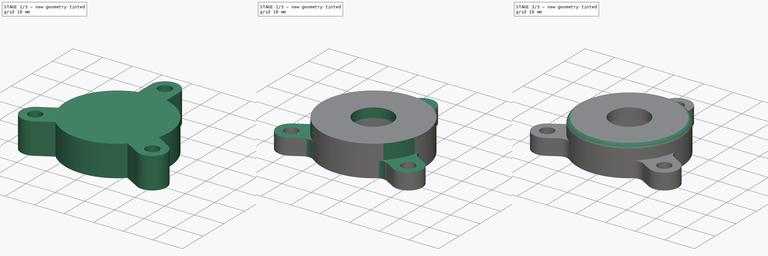
[diagram: build sequence overview — one tinted view per stage of 3, left to right]
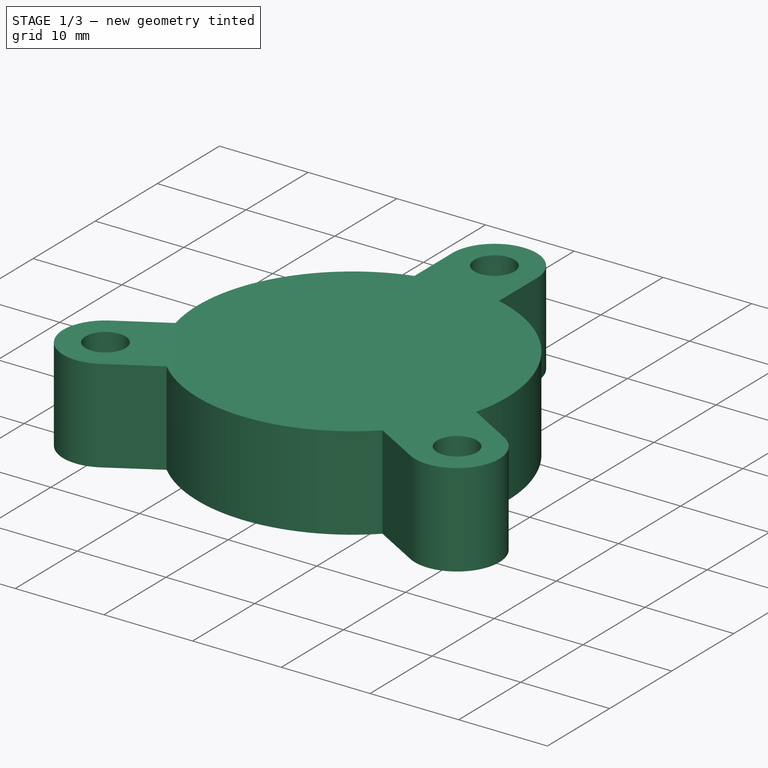
[diagram: stage 1 of 3 — iso view after this stage's code; geometry added in this stage tinted green]
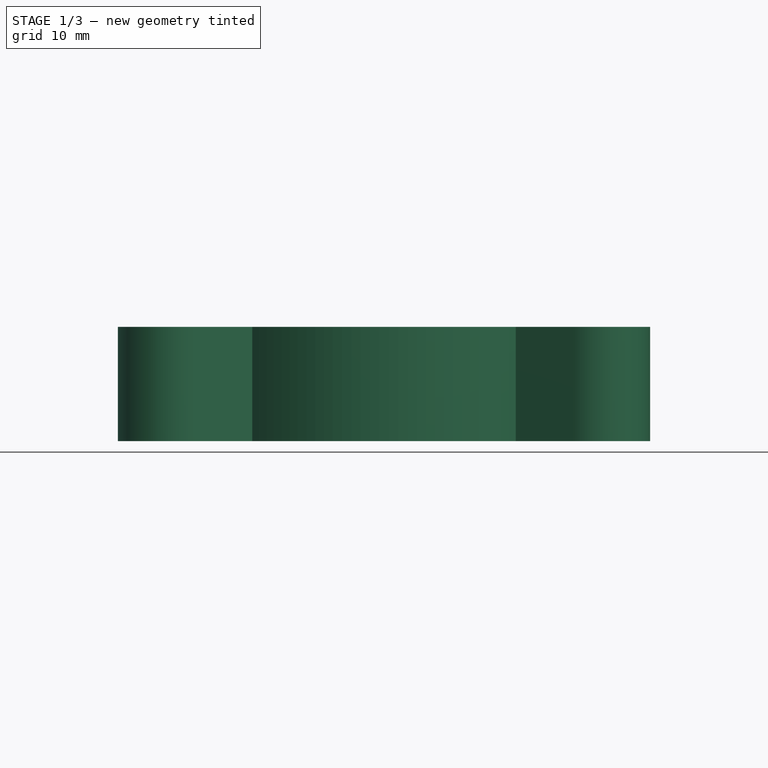
[diagram: stage 1 of 3 — front view after this stage's code; geometry added in this stage tinted green]
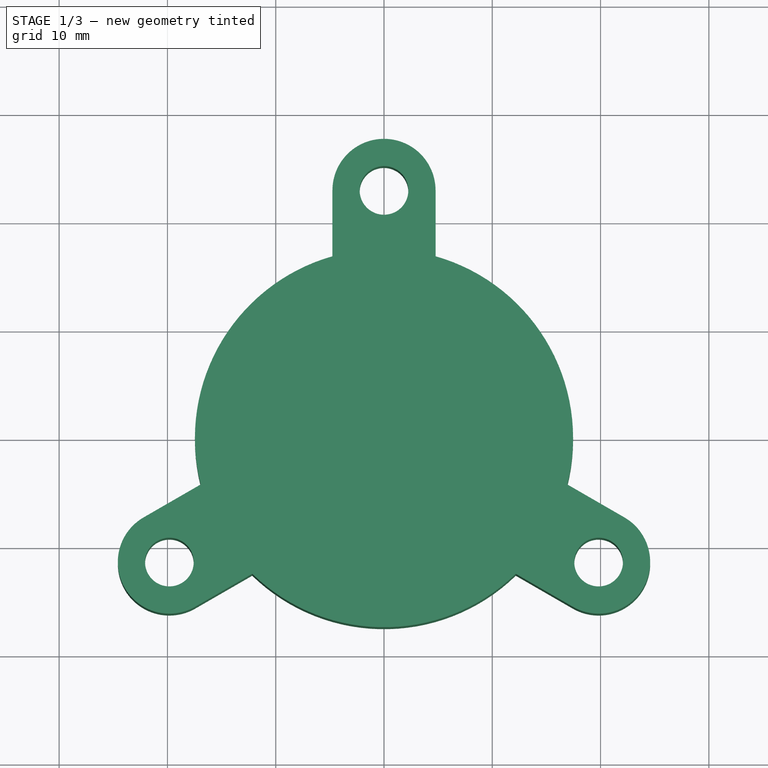
[diagram: stage 1 of 3 — top view after this stage's code; geometry added in this stage tinted green]
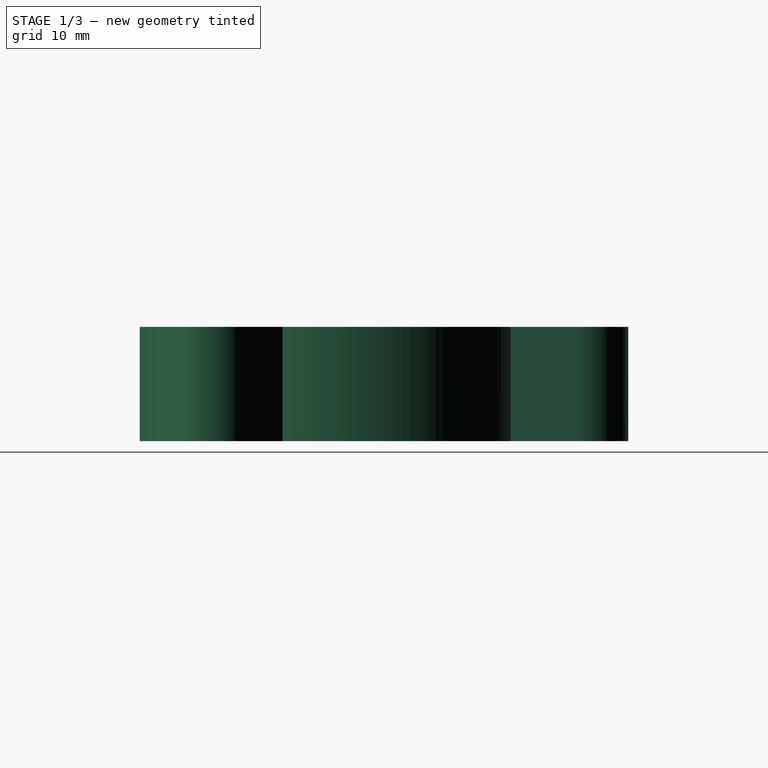
[diagram: stage 1 of 3 — right view after this stage's code; geometry added in this stage tinted green]
FCSTD DOCUMENT  (FreeCAD 0.17R13522 (Git))
Label: weapon_bearing_block
License: All rights reserved
LicenseURL: http://en.wikipedia.org/wiki/All_rights_reserved
objects: Sketcher::SketchObject×4, PartDesign::Pocket×3, PartDesign::Fillet×2, PartDesign::Pad×1, PartDesign::Chamfer×1, PartDesign::Body×1
note: 16 computed .brp shape members not serialized (recipe doc carries the construction recipe); baked Part::Feature solids carry a one-line shape summary decoded from their .brp

FEATURE [Sketcher::SketchObject] Sketch
  MapMode = 5
  Support = -> [XY_Plane]
  sketch-geometry (24):
    g0: ArcOfCircle CenterX=0 CenterY=0 CenterZ=0 NormalX=0 NormalY=0 NormalZ=1 AngleXU=0 Radius=17.4625 StartAngle=6.03581 EndAngle=7.57776
    g1: LineSegment [constr] StartX=0 StartY=0 StartZ=0 EndX=19.8193 EndY=-11.4427 EndZ=0
    g2: LineSegment [constr] StartX=0 StartY=0 StartZ=0 EndX=-19.8193 EndY=-11.4427 EndZ=0
    g3: LineSegment [constr] StartX=0 StartY=0 StartZ=0 EndX=0 EndY=22.8854 EndZ=0
    g4: Circle CenterX=19.8193 CenterY=-11.4427 CenterZ=0 NormalX=0 NormalY=0 NormalZ=1 AngleXU=0 Radius=2.2479
    g5: Circle CenterX=-19.8193 CenterY=-11.4427 CenterZ=0 NormalX=0 NormalY=0 NormalZ=1 AngleXU=0 Radius=2.2479
    g6: Circle CenterX=0 CenterY=22.8854 CenterZ=0 NormalX=0 NormalY=0 NormalZ=1 AngleXU=0 Radius=2.2479
    g7: LineSegment StartX=-4.7625 StartY=22.8854 StartZ=0 EndX=-4.7625 EndY=16.8005 EndZ=0
    g8: LineSegment StartX=4.7625 StartY=22.8854 StartZ=0 EndX=4.7625 EndY=16.8005 EndZ=0
    g9: LineSegment StartX=-22.2006 StartY=-7.31825 StartZ=0 EndX=-16.9309 EndY=-4.27581 EndZ=0
    g10: LineSegment StartX=-17.4381 StartY=-15.5671 StartZ=0 EndX=-12.1684 EndY=-12.5247 EndZ=0
    g11: LineSegment [constr] StartX=17.4381 StartY=-15.5671 StartZ=0 EndX=19.8193 EndY=-11.4427 EndZ=0
    g12: LineSegment [constr] StartX=-19.8193 StartY=-11.4427 StartZ=0 EndX=-17.4381 EndY=-15.5671 EndZ=0
    g13: LineSegment [constr] StartX=0 StartY=22.8854 StartZ=0 EndX=4.7625 EndY=22.8854 EndZ=0
    g14: LineSegment [constr] StartX=19.8193 StartY=-11.4427 StartZ=0 EndX=22.2006 EndY=-7.31825 EndZ=0
    g15: LineSegment StartX=16.9309 StartY=-4.27581 StartZ=0 EndX=22.2006 EndY=-7.31825 EndZ=0
    g16: LineSegment StartX=12.1684 StartY=-12.5247 StartZ=0 EndX=17.4381 EndY=-15.5671 EndZ=0
    g17: LineSegment [constr] StartX=-22.2006 StartY=-7.31825 StartZ=0 EndX=-19.8193 EndY=-11.4427 EndZ=0
    g18: LineSegment [constr] StartX=-4.7625 StartY=22.8854 StartZ=0 EndX=0 EndY=22.8854 EndZ=0
    g19: ArcOfCircle CenterX=0 CenterY=0 CenterZ=0 NormalX=0 NormalY=0 NormalZ=1 AngleXU=0 Radius=17.4625 StartAngle=1.84702 EndAngle=3.38896
    g20: ArcOfCircle CenterX=0 CenterY=0 CenterZ=0 NormalX=0 NormalY=0 NormalZ=1 AngleXU=0 Radius=17.4625 StartAngle=3.94142 EndAngle=5.48336
    g21: ArcOfCircle CenterX=0 CenterY=22.8854 CenterZ=0 NormalX=0 NormalY=0 NormalZ=1 AngleXU=0 Radius=4.7625 StartAngle=0 EndAngle=3.14159
    g22: ArcOfCircle CenterX=19.8193 CenterY=-11.4427 CenterZ=0 NormalX=0 NormalY=0 NormalZ=1 AngleXU=0 Radius=4.7625 StartAngle=4.18879 EndAngle=7.33038
    g23: ArcOfCircle CenterX=-19.8193 CenterY=-11.4427 CenterZ=0 NormalX=0 NormalY=0 NormalZ=1 AngleXU=0 Radius=4.7625 StartAngle=2.0944 EndAngle=5.23599
  constraints (67):
    c: Coincident(g0,g-1)
    c: Radius(g0) = 17.4625
    c: Coincident(g1,g-1)
    c: Coincident(g2,g-1)
    c: Angle(g1,g-2) = 2.0944
    c: Angle(g-2,g2) = 2.0944
    c: Distance(g1) = 22.8854
    c: Distance(g2) = 22.8854
    c: Coincident(g3,g-1)
    c: DistanceY(g3,g3) = 22.8854
    c: Coincident(g4,g1)
    c: Coincident(g5,g2)
    c: Coincident(g6,g3)
    c: Radius(g6) = 2.2479
    c: Equal(g6,g4)
    c: Equal(g6,g5)
    c: Vertical(g7)
    c: Vertical(g8)
    c: Parallel(g10,g9)
    c: Parallel(g9,g2)
    c: Parallel(g7,g3)
    c: Coincident(g11,g16)
    c: Coincident(g11,g1)
    c: Coincident(g14,g1)
    c: Coincident(g14,g15)
    c: Perpendicular(g1,g14)
    c: Distance(g16,g15) = 9.525
    c: Symmetric(g16,g15,g1)
    c: Coincident(g0,g15)
    c: Coincident(g20,g16)
    c: Perpendicular(g10,g12)
    c: Coincident(g12,g10)
    c: Coincident(g12,g2)
    c: Coincident(g17,g9)
    c: Coincident(g17,g2)
    c: Perpendicular(g9,g17)
    c: Symmetric(g10,g9,g2)
    c: Distance(g10,g9) = 9.525
    c: PointOnObject(g10,g0)
    c: PointOnObject(g9,g0)
    c: Perpendicular(g13,g8)
    c: Coincident(g8,g13)
    c: Coincident(g13,g3)
    c: Horizontal(g18)
    c: Coincident(g18,g3)
    c: Coincident(g18,g7)
    c: Symmetric(g7,g8,g3)
    c: DistanceX(g7,g8) = 9.525
    c: Equal(g0,g19)
    c: Coincident(g19,g7)
    c: Coincident(g0,g19)
    c: Coincident(g0,g8)
    c: Equal(g19,g20)
    c: PointOnObject(g20,g10)
    c: Coincident(g19,g20)
    c: PointOnObject(g19,g9)
    c: Coincident(g21,g3)
    c: Coincident(g21,g7)
    c: Coincident(g21,g8)
    c: Coincident(g22,g1)
    c: Coincident(g22,g14)
    c: Coincident(g22,g11)
    c: Coincident(g23,g2)
    c: Coincident(g23,g9)
    c: Coincident(g23,g10)
    c: Parallel(g15,g16)
    c: Parallel(g15,g1)
FEATURE [PartDesign::Pad] Pad
  Length = 10.541
  Length2 = 99.9998
  Profile = -> Sketch
  Type = 0
FEATURE [Sketcher::SketchObject] Sketch001
  MapMode = 5
  Placement = pos=(0,0,0) rot=(1,0,0;3.14159rad)
  Support = -> [Pad]
  sketch-geometry (1):
    g0: Circle CenterX=0 CenterY=0 CenterZ=0 NormalX=0 NormalY=0 NormalZ=1 AngleXU=0 Radius=11.176
  constraints (2):
    c: Coincident(g0,g-1)
    c: Radius(g0) = 11.176
FEATURE [PartDesign::Pocket] Pocket
  BaseFeature = -> Pad
  Length = 7.366
  Length2 = 99.9998
  Profile = -> Sketch001
  Type = 0
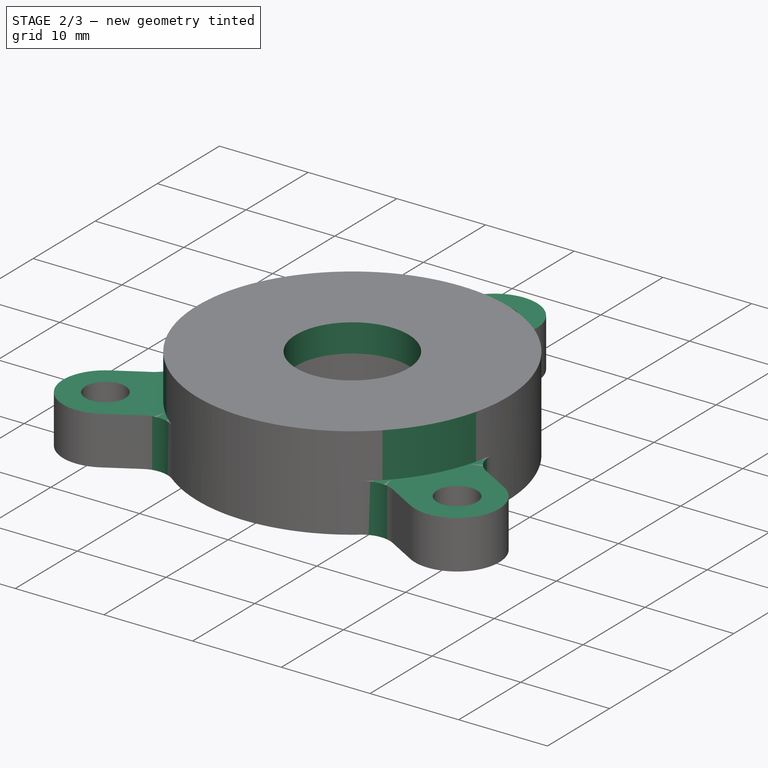
[diagram: stage 2 of 3 — iso view after this stage's code; geometry added in this stage tinted green]
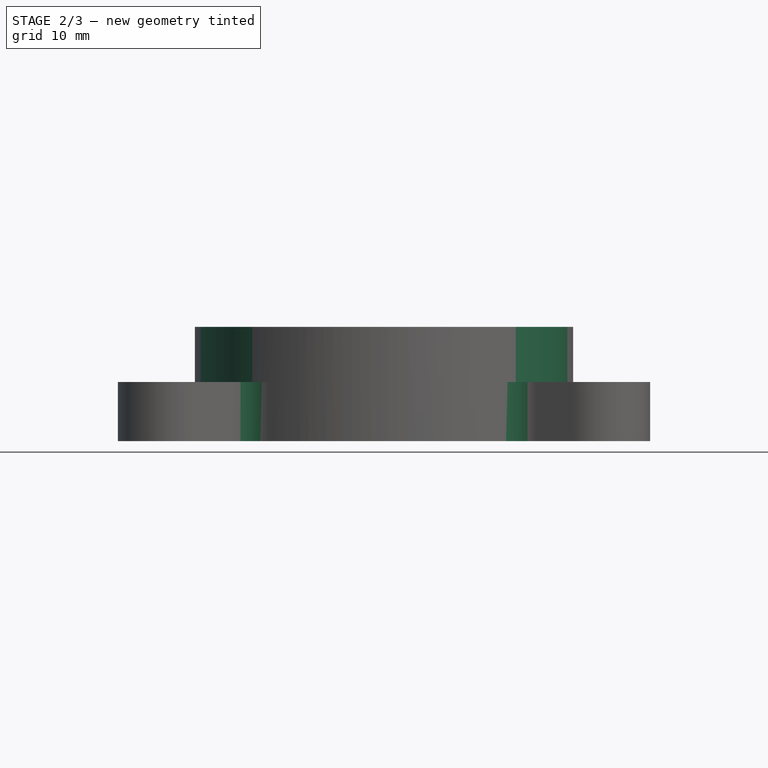
[diagram: stage 2 of 3 — front view after this stage's code; geometry added in this stage tinted green]
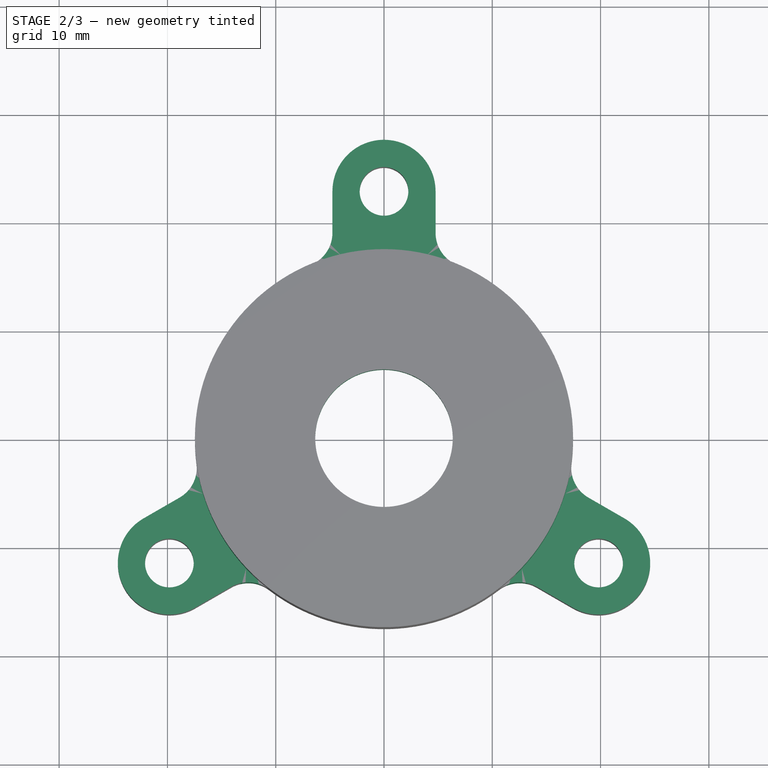
[diagram: stage 2 of 3 — top view after this stage's code; geometry added in this stage tinted green]
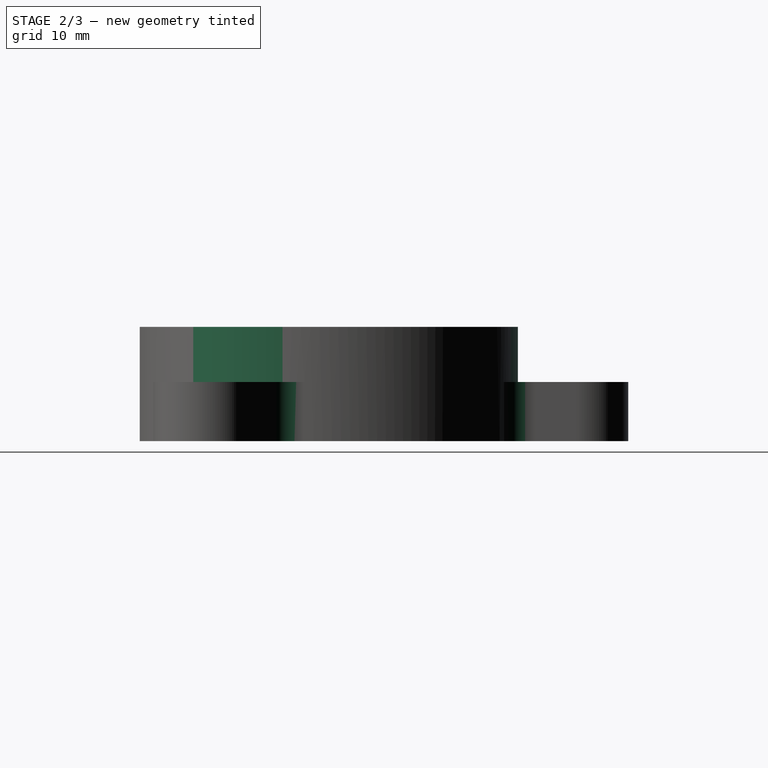
[diagram: stage 2 of 3 — right view after this stage's code; geometry added in this stage tinted green]
FEATURE [Sketcher::SketchObject] Sketch002
  MapMode = 5
  Placement = pos=(0,0,7.366) rot=(1,0,0;3.14159rad)
  Support = -> [Pocket]
  sketch-geometry (1):
    g0: Circle CenterX=0 CenterY=0 CenterZ=0 NormalX=0 NormalY=0 NormalZ=1 AngleXU=0 Radius=6.35
  constraints (2):
    c: Coincident(g0,g-1)
    c: Radius(g0) = 6.35
FEATURE [PartDesign::Pocket] Pocket001
  BaseFeature = -> Pocket
  Length = 5.0038
  Length2 = 99.9998
  Profile = -> Sketch002
  Type = 1
FEATURE [Sketcher::SketchObject] Sketch003
  ExternalGeometry = -> [Pocket001]
  MapMode = 5
  Placement = pos=(0,0,10.541) rot=(0,0,1;0rad)
  Support = -> [Pocket001]
  sketch-geometry (12):
    g0: ArcOfCircle CenterX=0 CenterY=0 CenterZ=0 NormalX=0 NormalY=0 NormalZ=1 AngleXU=0 Radius=17.4625 StartAngle=5.48336 EndAngle=6.03581
    g1: ArcOfCircle CenterX=0 CenterY=0 CenterZ=0 NormalX=0 NormalY=0 NormalZ=1 AngleXU=0 Radius=17.4625 StartAngle=3.38896 EndAngle=3.94142
    g2: LineSegment StartX=16.9309 StartY=-4.27581 StartZ=0 EndX=22.2006 EndY=-7.31825 EndZ=0
    g3: LineSegment StartX=12.1684 StartY=-12.5247 StartZ=0 EndX=17.4381 EndY=-15.5671 EndZ=0
    g4: LineSegment StartX=-12.1684 StartY=-12.5247 StartZ=0 EndX=-17.4381 EndY=-15.5671 EndZ=0
    g5: LineSegment StartX=-16.9309 StartY=-4.27581 StartZ=0 EndX=-22.2006 EndY=-7.31825 EndZ=0
    g6: ArcOfCircle CenterX=19.8193 CenterY=-11.4427 CenterZ=0 NormalX=0 NormalY=0 NormalZ=1 AngleXU=0 Radius=4.7625 StartAngle=4.18879 EndAngle=7.33038
    g7: ArcOfCircle CenterX=-19.8193 CenterY=-11.4427 CenterZ=0 NormalX=0 NormalY=0 NormalZ=1 AngleXU=0 Radius=4.7625 StartAngle=2.0944 EndAngle=5.23599
    g8: ArcOfCircle CenterX=0 CenterY=0 CenterZ=0 NormalX=0 NormalY=0 NormalZ=1 AngleXU=0 Radius=17.4625 StartAngle=1.29457 EndAngle=1.84702
    g9: LineSegment StartX=-4.7625 StartY=22.8854 StartZ=0 EndX=-4.7625 EndY=16.8005 EndZ=0
    g10: LineSegment StartX=4.7625 StartY=22.8854 StartZ=0 EndX=4.7625 EndY=16.8005 EndZ=0
    g11: ArcOfCircle CenterX=0 CenterY=22.8854 CenterZ=0 NormalX=0 NormalY=0 NormalZ=1 AngleXU=0 Radius=4.7625 StartAngle=0 EndAngle=3.14159
  constraints (30):
    c: Coincident(g0,g-1)
    c: Coincident(g0,g-3)
    c: Coincident(g0,g-4)
    c: Coincident(g1,g-1)
    c: Coincident(g1,g-7)
    c: Coincident(g1,g-6)
    c: Coincident(g2,g0)
    c: Coincident(g2,g-5)
    c: Coincident(g3,g0)
    c: Coincident(g3,g-5)
    c: Coincident(g4,g1)
    c: Coincident(g4,g-8)
    c: Coincident(g5,g1)
    c: Coincident(g5,g-8)
    c: Coincident(g6,g-5)
    c: Coincident(g6,g2)
    c: Coincident(g6,g3)
    c: Coincident(g7,g-8)
    c: Coincident(g7,g5)
    c: Coincident(g7,g4)
    c: Coincident(g8,g-1)
    c: Coincident(g8,g-9)
    c: Coincident(g8,g-10)
    c: Coincident(g9,g-11)
    c: Coincident(g9,g8)
    c: Coincident(g10,g-11)
    c: Coincident(g10,g8)
    c: Coincident(g11,g-11)
    c: Coincident(g11,g9)
    c: Coincident(g11,g10)
FEATURE [PartDesign::Pocket] Pocket002
  BaseFeature = -> Pocket001
  Length = 5.08
  Length2 = 99.9998
  Profile = -> Sketch003
  Type = 0
FEATURE [PartDesign::Fillet] Fillet
  Base = -> Pocket002 [Edge45,Edge42,Edge31,Edge20,Edge25,Edge26]
  BaseFeature = -> Pocket002
  Radius = 3.175
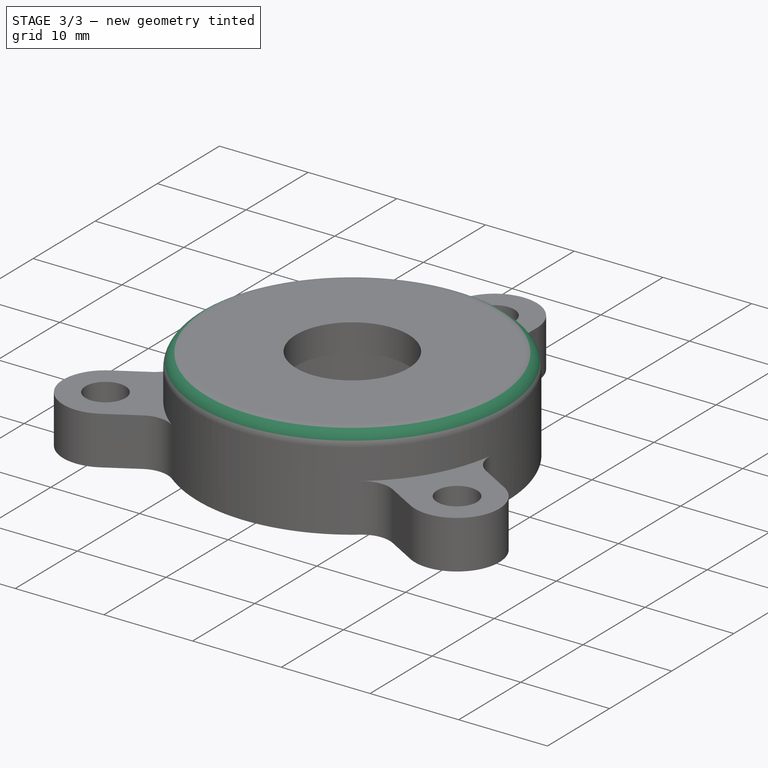
[diagram: stage 3 of 3 — iso view after this stage's code; geometry added in this stage tinted green]
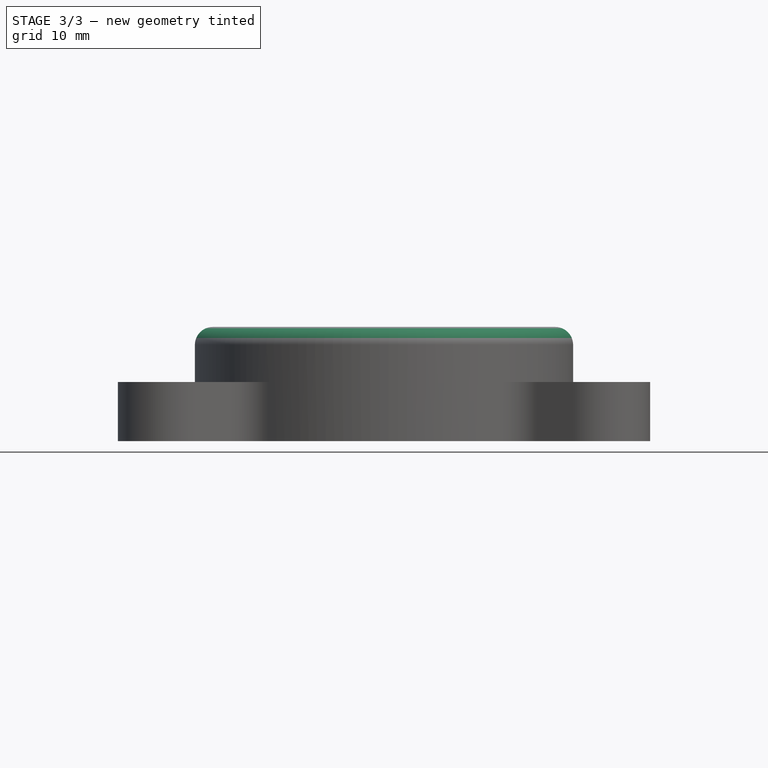
[diagram: stage 3 of 3 — front view after this stage's code; geometry added in this stage tinted green]
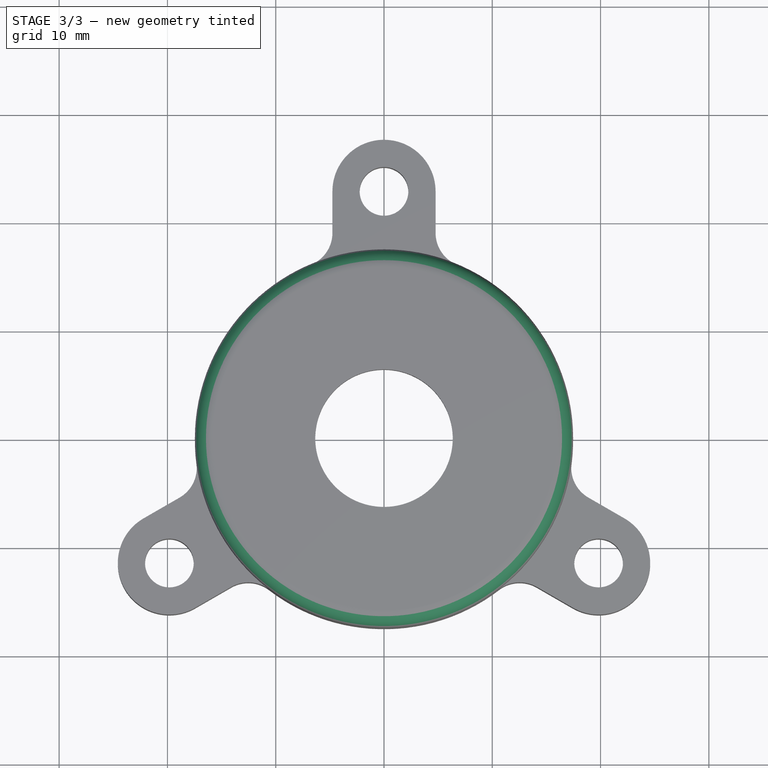
[diagram: stage 3 of 3 — top view after this stage's code; geometry added in this stage tinted green]
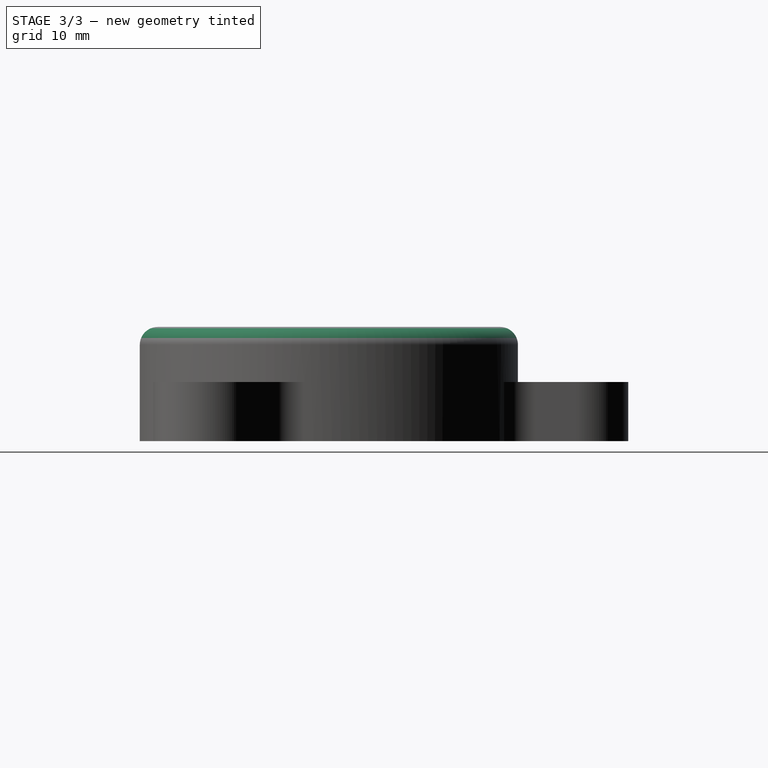
[diagram: stage 3 of 3 — right view after this stage's code; geometry added in this stage tinted green]
FEATURE [PartDesign::Fillet] Fillet001
  Base = -> Fillet [Edge83,Edge49,Edge82,Edge35,Edge81,Edge67]
  BaseFeature = -> Fillet
  Radius = 1.651
FEATURE [PartDesign::Chamfer] Chamfer
  Base = -> Fillet001 [Edge51]
  BaseFeature = -> Fillet001
  Size = 1.27
FEATURE [PartDesign::Body] Body
  Group = -> [Sketch,Pad,Sketch001,Pocket,Sketch002,Pocket001,Sketch003,Pocket002,Fillet,Fillet001,Chamfer]
  Origin = -> Origin
  Tip = -> Chamfer
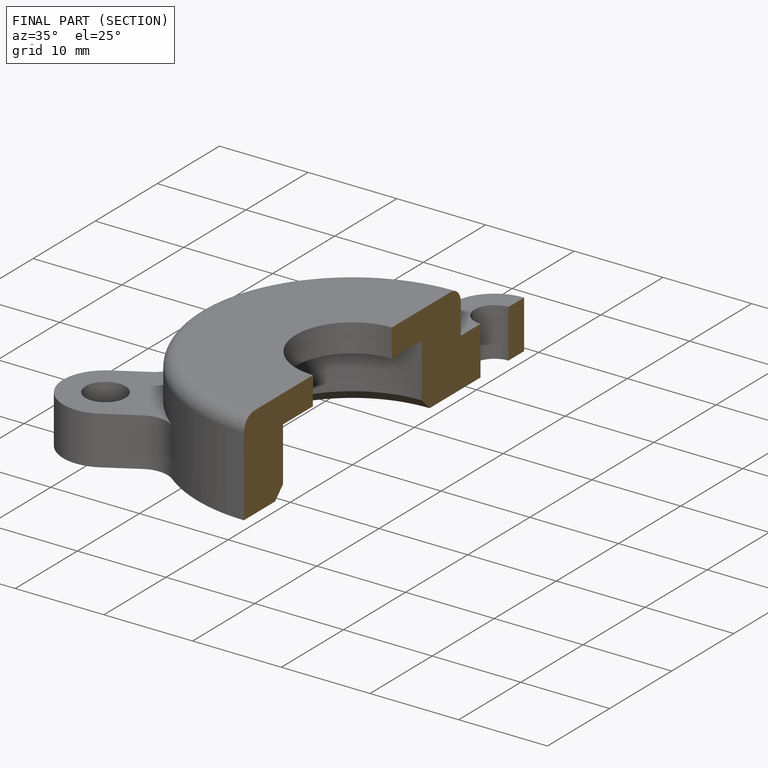
[diagram: finished part — half-section view (interior)]
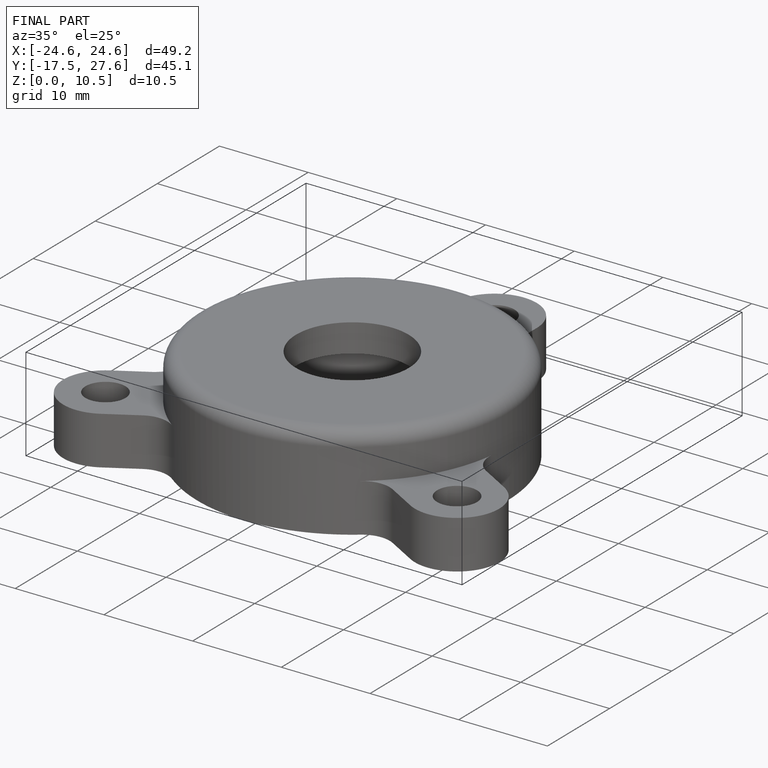
[diagram: finished part — iso view with bounding-box wireframe]
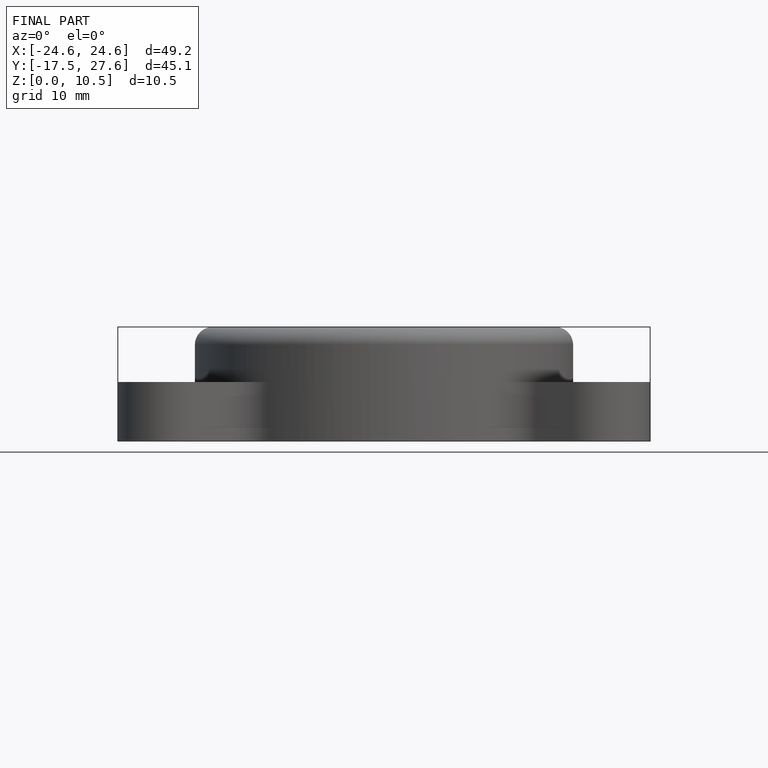
[diagram: finished part — front view with bounding-box wireframe]
